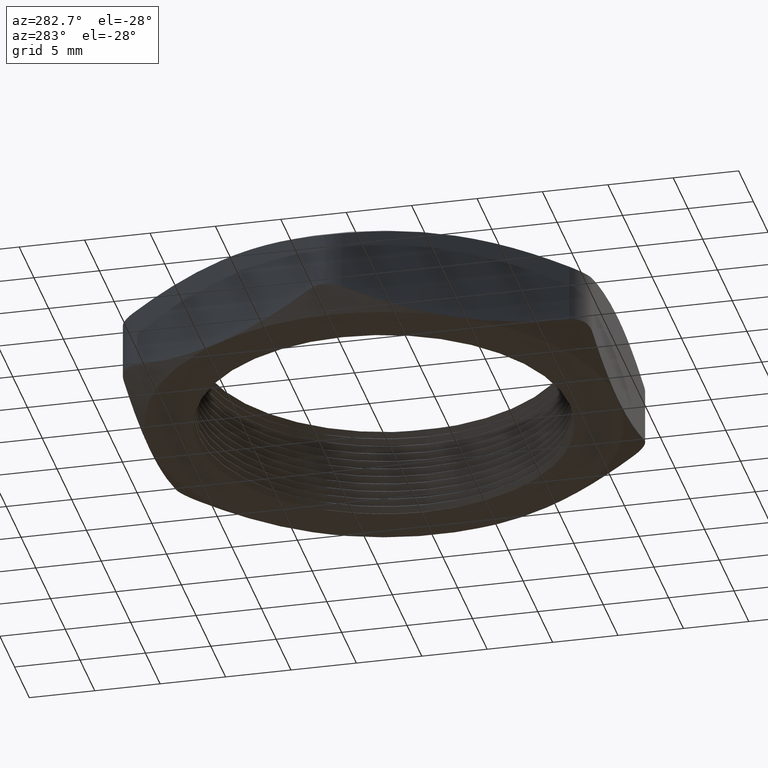
[diagram: clean part render]
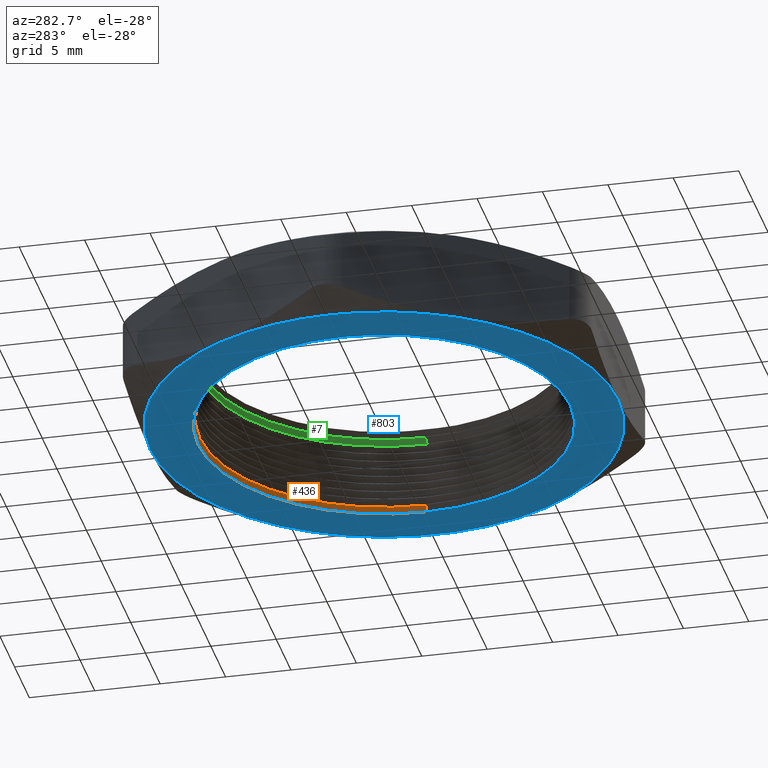
[diagram: same view with three faces highlighted in distinct colors, each labeled with its STEP entity id]
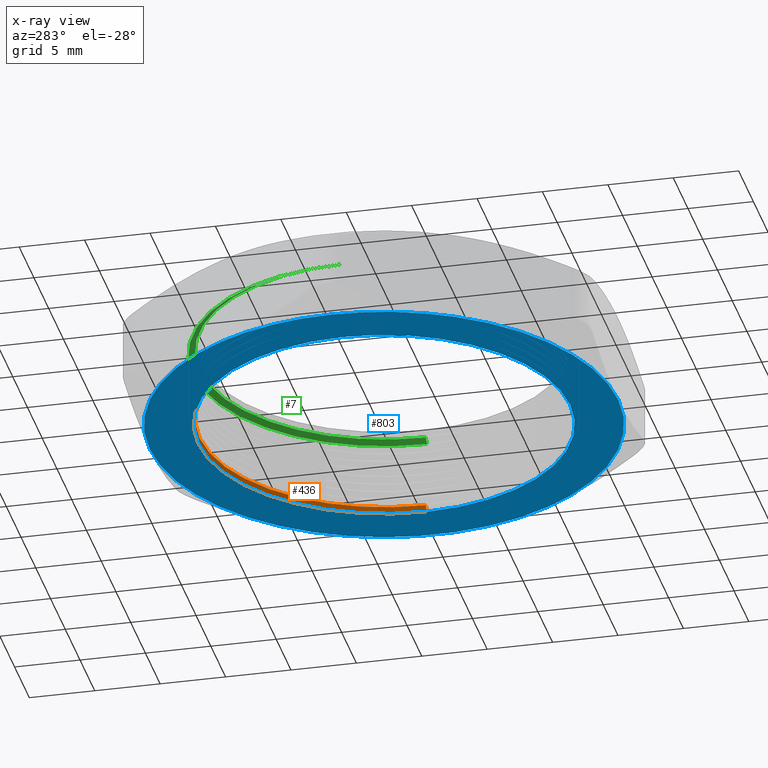
[diagram: x-ray of the same camera — body ghosted, the three highlighted faces saturated]
A machine part, auxiliary view with three faces highlighted in distinct colors.
The next image is the same camera in x-ray (body ghosted, the three faces saturated) — at least one of them is partly hidden behind the body in this view.
Their STEP definitions:

[orange] entity #436 — the highlighted conical surface has half-angle 60 deg.
#421 = ORIENTED_EDGE ( 'NONE', *, *, #768, .F. ) ;
#422 = ORIENTED_EDGE ( 'NONE', *, *, #686, .T. ) ;
#423 = ORIENTED_EDGE ( 'NONE', *, *, #846, .T. ) ;
#424 = ORIENTED_EDGE ( 'NONE', *, *, #435, .F. ) ;
#435 = EDGE_CURVE ( 'NONE', #769, #844, #1691, .T. ) ;
#436 = ADVANCED_FACE ( 'NONE', ( #1692 ), #1748, .F. ) ;
#437 = EDGE_LOOP ( 'NONE', ( #421, #422, #423, #424 ) ) ;
#686 = EDGE_CURVE ( 'NONE', #787, #788, #2237, .T. ) ;
#768 = EDGE_CURVE ( 'NONE', #787, #769, #2354, .T. ) ;
#769 = VERTEX_POINT ( 'NONE', #2350 ) ;
#787 = VERTEX_POINT ( 'NONE', #2370 ) ;
#788 = VERTEX_POINT ( 'NONE', #2369 ) ;
#844 = VERTEX_POINT ( 'NONE', #2506 ) ;
#846 = EDGE_CURVE ( 'NONE', #788, #844, #2505, .T. ) ;
#1686 = CARTESIAN_POINT ( 'NONE',  ( 0.0000000000000000000, 0.0000000000000000000, 0.008452994616207746400 ) ) ;
#1687 = DIRECTION ( 'NONE',  ( 1.000000000000000000, 0.0000000000000000000, 0.0000000000000000000 ) ) ;
#1688 = DIRECTION ( 'NONE',  ( 0.0000000000000000000, 0.0000000000000000000, 1.000000000000000000 ) ) ;
#1689 = CARTESIAN_POINT ( 'NONE',  ( 0.0000000000000000000, 0.0000000000000000000, 0.008452994616207746400 ) ) ;
#1690 = AXIS2_PLACEMENT_3D ( 'NONE', #1689, #1688, #1687 ) ;
#1691 = CIRCLE ( 'NONE', #1690, 0.5750000000000000700 ) ;
#1692 = FACE_OUTER_BOUND ( 'NONE', #437, .T. ) ;
#1745 = DIRECTION ( 'NONE',  ( -1.000000000000000000, 0.0000000000000000000, 0.0000000000000000000 ) ) ;
#1746 = DIRECTION ( 'NONE',  ( 0.0000000000000000000, 0.0000000000000000000, -1.000000000000000000 ) ) ;
#1747 = AXIS2_PLACEMENT_3D ( 'NONE', #1686, #1746, #1745 ) ;
#1748 = CONICAL_SURFACE ( 'NONE', #1747, 0.5750000000000000700, 1.047197551196607600 ) ;
#2233 = DIRECTION ( 'NONE',  ( 1.000000000000000000, 0.0000000000000000000, 0.0000000000000000000 ) ) ;
#2234 = DIRECTION ( 'NONE',  ( 0.0000000000000000000, 0.0000000000000000000, 1.000000000000000000 ) ) ;
#2235 = CARTESIAN_POINT ( 'NONE',  ( 0.0000000000000000000, 0.0000000000000000000, 0.01999999999999999000 ) ) ;
#2236 = AXIS2_PLACEMENT_3D ( 'NONE', #2235, #2234, #2233 ) ;
#2237 = CIRCLE ( 'NONE', #2236, 0.5550000000000000500 ) ;
#2350 = CARTESIAN_POINT ( 'NONE',  ( 0.5750000000000000700, 0.0000000000000000000, 0.008452994616207746400 ) ) ;
#2351 = DIRECTION ( 'NONE',  ( 0.8660254037844434800, 1.060575238724912700E-016, -0.4999999999999913400 ) ) ;
#2352 = VECTOR ( 'NONE', #2351, 39.37007874015748900 ) ;
#2353 = CARTESIAN_POINT ( 'NONE',  ( 0.5750000000000000700, 7.041719095097281400E-017, 0.008452994616207746400 ) ) ;
#2354 = LINE ( 'NONE', #2353, #2352 ) ;
#2369 = CARTESIAN_POINT ( 'NONE',  ( -0.5550000000000000500, 0.0000000000000000000, 0.01999999999999999000 ) ) ;
#2370 = CARTESIAN_POINT ( 'NONE',  ( 0.5550000000000000500, 6.796789735267810000E-017, 0.01999999999999999000 ) ) ;
#2502 = DIRECTION ( 'NONE',  ( -0.8660254037844434800, 0.0000000000000000000, -0.4999999999999913400 ) ) ;
#2503 = VECTOR ( 'NONE', #2502, 39.37007874015748900 ) ;
#2504 = CARTESIAN_POINT ( 'NONE',  ( -0.5750000000000000700, 0.0000000000000000000, 0.008452994616207746400 ) ) ;
#2505 = LINE ( 'NONE', #2504, #2503 ) ;
#2506 = CARTESIAN_POINT ( 'NONE',  ( -0.5750000000000000700, 7.041719095097281400E-017, 0.008452994616207746400 ) ) ;

[blue] entity #803 — the highlighted planar face has unit normal (0, 0, 1).
#581 = EDGE_CURVE ( 'NONE', #582, #583, #1980, .T. ) ;
#582 = VERTEX_POINT ( 'NONE', #1976 ) ;
#583 = VERTEX_POINT ( 'NONE', #1975 ) ;
#688 = EDGE_LOOP ( 'NONE', ( #724, #689, #747, #804, #743, #760, #761 ) ) ;
#689 = ORIENTED_EDGE ( 'NONE', *, *, #737, .F. ) ;
#724 = ORIENTED_EDGE ( 'NONE', *, *, #802, .F. ) ;
#734 = VERTEX_POINT ( 'NONE', #2289 ) ;
#735 = VERTEX_POINT ( 'NONE', #2288 ) ;
#737 = EDGE_CURVE ( 'NONE', #759, #734, #2282, .T. ) ;
#740 = EDGE_CURVE ( 'NONE', #582, #735, #2275, .T. ) ;
#741 = EDGE_LOOP ( 'NONE', ( #750, #751 ) ) ;
#742 = VERTEX_POINT ( 'NONE', #2328 ) ;
#743 = ORIENTED_EDGE ( 'NONE', *, *, #744, .F. ) ;
#744 = EDGE_CURVE ( 'NONE', #583, #742, #2327, .T. ) ;
#747 = ORIENTED_EDGE ( 'NONE', *, *, #748, .F. ) ;
#748 = EDGE_CURVE ( 'NONE', #749, #759, #2322, .T. ) ;
#749 = VERTEX_POINT ( 'NONE', #2317 ) ;
#750 = ORIENTED_EDGE ( 'NONE', *, *, #819, .F. ) ;
#751 = ORIENTED_EDGE ( 'NONE', *, *, #752, .F. ) ;
#752 = EDGE_CURVE ( 'NONE', #821, #820, #2316, .T. ) ;
#759 = VERTEX_POINT ( 'NONE', #2359 ) ;
#760 = ORIENTED_EDGE ( 'NONE', *, *, #581, .F. ) ;
#761 = ORIENTED_EDGE ( 'NONE', *, *, #740, .T. ) ;
#802 = EDGE_CURVE ( 'NONE', #734, #735, #2405, .T. ) ;
#803 = ADVANCED_FACE ( 'NONE', ( #2406, #2400 ), #2399, .F. ) ;
#804 = ORIENTED_EDGE ( 'NONE', *, *, #805, .F. ) ;
#805 = EDGE_CURVE ( 'NONE', #742, #749, #2456, .T. ) ;
#819 = EDGE_CURVE ( 'NONE', #820, #821, #2435, .T. ) ;
#820 = VERTEX_POINT ( 'NONE', #2430 ) ;
#821 = VERTEX_POINT ( 'NONE', #2429 ) ;
#1975 = CARTESIAN_POINT ( 'NONE',  ( -0.7049999999999998500, 0.0000000000000000000, 0.0000000000000000000 ) ) ;
#1976 = CARTESIAN_POINT ( 'NONE',  ( -0.6105479096680291900, 0.3525000000000000900, 0.0000000000000000000 ) ) ;
#1977 = DIRECTION ( 'NONE',  ( 1.000000000000000000, 0.0000000000000000000, 0.0000000000000000000 ) ) ;
#1978 = DIRECTION ( 'NONE',  ( 0.0000000000000000000, 0.0000000000000000000, 1.000000000000000000 ) ) ;
#1979 = AXIS2_PLACEMENT_3D ( 'NONE', #1985, #1978, #1977 ) ;
#1980 = CIRCLE ( 'NONE', #1979, 0.7049999999999998500 ) ;
#1985 = CARTESIAN_POINT ( 'NONE',  ( 0.0000000000000000000, 0.0000000000000000000, 0.0000000000000000000 ) ) ;
#2275 = CIRCLE ( 'NONE', #2332, 0.7049999999999999600 ) ;
#2278 = DIRECTION ( 'NONE',  ( 1.000000000000000000, 0.0000000000000000000, 0.0000000000000000000 ) ) ;
#2279 = DIRECTION ( 'NONE',  ( 0.0000000000000000000, 0.0000000000000000000, 1.000000000000000000 ) ) ;
#2280 = CARTESIAN_POINT ( 'NONE',  ( 0.0000000000000000000, 0.0000000000000000000, 0.0000000000000000000 ) ) ;
#2281 = AXIS2_PLACEMENT_3D ( 'NONE', #2280, #2279, #2278 ) ;
#2282 = CIRCLE ( 'NONE', #2281, 0.7049999999999998500 ) ;
#2288 = CARTESIAN_POINT ( 'NONE',  ( 0.0000000000000000000, 0.7049999999999999600, 0.0000000000000000000 ) ) ;
#2289 = CARTESIAN_POINT ( 'NONE',  ( 0.6105479096680294100, 0.3524999999999999200, 0.0000000000000000000 ) ) ;
#2312 = DIRECTION ( 'NONE',  ( 1.000000000000000000, 0.0000000000000000000, 0.0000000000000000000 ) ) ;
#2313 = DIRECTION ( 'NONE',  ( 0.0000000000000000000, 0.0000000000000000000, -1.000000000000000000 ) ) ;
#2314 = CARTESIAN_POINT ( 'NONE',  ( 0.0000000000000000000, 0.0000000000000000000, 0.0000000000000000000 ) ) ;
#2315 = AXIS2_PLACEMENT_3D ( 'NONE', #2314, #2313, #2312 ) ;
#2316 = CIRCLE ( 'NONE', #2315, 0.5603589838486221500 ) ;
#2317 = CARTESIAN_POINT ( 'NONE',  ( 0.0000000000000000000, -0.7049999999999999600, 0.0000000000000000000 ) ) ;
#2318 = DIRECTION ( 'NONE',  ( 1.000000000000000000, 0.0000000000000000000, 0.0000000000000000000 ) ) ;
#2319 = DIRECTION ( 'NONE',  ( 0.0000000000000000000, 0.0000000000000000000, 1.000000000000000000 ) ) ;
#2320 = CARTESIAN_POINT ( 'NONE',  ( 0.0000000000000000000, 0.0000000000000000000, 0.0000000000000000000 ) ) ;
#2321 = AXIS2_PLACEMENT_3D ( 'NONE', #2320, #2319, #2318 ) ;
#2322 = CIRCLE ( 'NONE', #2321, 0.7049999999999998500 ) ;
#2323 = DIRECTION ( 'NONE',  ( 1.000000000000000000, 0.0000000000000000000, 0.0000000000000000000 ) ) ;
#2324 = DIRECTION ( 'NONE',  ( 0.0000000000000000000, 0.0000000000000000000, 1.000000000000000000 ) ) ;
#2325 = CARTESIAN_POINT ( 'NONE',  ( 0.0000000000000000000, 0.0000000000000000000, 0.0000000000000000000 ) ) ;
#2326 = AXIS2_PLACEMENT_3D ( 'NONE', #2325, #2324, #2323 ) ;
#2327 = CIRCLE ( 'NONE', #2326, 0.7049999999999998500 ) ;
#2328 = CARTESIAN_POINT ( 'NONE',  ( -0.6105479096680294100, -0.3524999999999998700, 0.0000000000000000000 ) ) ;
#2329 = DIRECTION ( 'NONE',  ( -1.000000000000000000, 0.0000000000000000000, 0.0000000000000000000 ) ) ;
#2330 = DIRECTION ( 'NONE',  ( 0.0000000000000000000, 0.0000000000000000000, -1.000000000000000000 ) ) ;
#2331 = CARTESIAN_POINT ( 'NONE',  ( 0.0000000000000000000, 0.0000000000000000000, 0.0000000000000000000 ) ) ;
#2332 = AXIS2_PLACEMENT_3D ( 'NONE', #2331, #2330, #2329 ) ;
#2359 = CARTESIAN_POINT ( 'NONE',  ( 0.6105479096680293000, -0.3524999999999999200, 0.0000000000000000000 ) ) ;
#2398 = AXIS2_PLACEMENT_3D ( 'NONE', #2459, #2458, #2457 ) ;
#2399 = PLANE ( 'NONE',  #2398 ) ;
#2400 = FACE_BOUND ( 'NONE', #741, .T. ) ;
#2401 = DIRECTION ( 'NONE',  ( 1.000000000000000000, 0.0000000000000000000, 0.0000000000000000000 ) ) ;
#2402 = DIRECTION ( 'NONE',  ( 0.0000000000000000000, 0.0000000000000000000, 1.000000000000000000 ) ) ;
#2403 = CARTESIAN_POINT ( 'NONE',  ( 0.0000000000000000000, 0.0000000000000000000, 0.0000000000000000000 ) ) ;
#2404 = AXIS2_PLACEMENT_3D ( 'NONE', #2403, #2402, #2401 ) ;
#2405 = CIRCLE ( 'NONE', #2404, 0.7049999999999998500 ) ;
#2406 = FACE_OUTER_BOUND ( 'NONE', #688, .T. ) ;
#2429 = CARTESIAN_POINT ( 'NONE',  ( -0.5603589838486221500, 6.952068727267033500E-017, 0.0000000000000000000 ) ) ;
#2430 = CARTESIAN_POINT ( 'NONE',  ( 0.5603589838486221500, 0.0000000000000000000, 0.0000000000000000000 ) ) ;
#2431 = DIRECTION ( 'NONE',  ( 1.000000000000000000, 0.0000000000000000000, 0.0000000000000000000 ) ) ;
#2432 = DIRECTION ( 'NONE',  ( 0.0000000000000000000, 0.0000000000000000000, -1.000000000000000000 ) ) ;
#2433 = CARTESIAN_POINT ( 'NONE',  ( 0.0000000000000000000, 0.0000000000000000000, 0.0000000000000000000 ) ) ;
#2434 = AXIS2_PLACEMENT_3D ( 'NONE', #2433, #2432, #2431 ) ;
#2435 = CIRCLE ( 'NONE', #2434, 0.5603589838486221500 ) ;
#2452 = DIRECTION ( 'NONE',  ( 1.000000000000000000, 0.0000000000000000000, 0.0000000000000000000 ) ) ;
#2453 = DIRECTION ( 'NONE',  ( 0.0000000000000000000, 0.0000000000000000000, 1.000000000000000000 ) ) ;
#2454 = CARTESIAN_POINT ( 'NONE',  ( 0.0000000000000000000, 0.0000000000000000000, 0.0000000000000000000 ) ) ;
#2455 = AXIS2_PLACEMENT_3D ( 'NONE', #2454, #2453, #2452 ) ;
#2456 = CIRCLE ( 'NONE', #2455, 0.7049999999999998500 ) ;
#2457 = DIRECTION ( 'NONE',  ( 1.000000000000000000, 0.0000000000000000000, 0.0000000000000000000 ) ) ;
#2458 = DIRECTION ( 'NONE',  ( 0.0000000000000000000, 0.0000000000000000000, 1.000000000000000000 ) ) ;
#2459 = CARTESIAN_POINT ( 'NONE',  ( -0.8140638795573724700, -1.022001824137960300E-016, 0.0000000000000000000 ) ) ;

[green] entity #7 — the highlighted conical surface has half-angle 60 deg.
#1 = ORIENTED_EDGE ( 'NONE', *, *, #58, .T. ) ;
#2 = ORIENTED_EDGE ( 'NONE', *, *, #642, .T. ) ;
#4 = EDGE_LOOP ( 'NONE', ( #5, #1, #2, #2618 ) ) ;
#5 = ORIENTED_EDGE ( 'NONE', *, *, #573, .F. ) ;
#7 = ADVANCED_FACE ( 'NONE', ( #859 ), #854, .F. ) ;
#58 = EDGE_CURVE ( 'NONE', #571, #570, #949, .T. ) ;
#570 = VERTEX_POINT ( 'NONE', #1997 ) ;
#571 = VERTEX_POINT ( 'NONE', #1996 ) ;
#573 = EDGE_CURVE ( 'NONE', #571, #598, #1995, .T. ) ;
#587 = VERTEX_POINT ( 'NONE', #1970 ) ;
#598 = VERTEX_POINT ( 'NONE', #2013 ) ;
#642 = EDGE_CURVE ( 'NONE', #570, #587, #2146, .T. ) ;
#849 = DIRECTION ( 'NONE',  ( -1.000000000000000000, 0.0000000000000000000, 0.0000000000000000000 ) ) ;
#850 = DIRECTION ( 'NONE',  ( 0.0000000000000000000, 0.0000000000000000000, -1.000000000000000000 ) ) ;
#851 = CARTESIAN_POINT ( 'NONE',  ( 0.0000000000000000000, 0.0000000000000000000, 0.2334529946162077800 ) ) ;
#852 = AXIS2_PLACEMENT_3D ( 'NONE', #851, #850, #849 ) ;
#854 = CONICAL_SURFACE ( 'NONE', #852, 0.5750000000000000700, 1.047197551196607600 ) ;
#859 = FACE_OUTER_BOUND ( 'NONE', #4, .T. ) ;
#945 = DIRECTION ( 'NONE',  ( 1.000000000000000000, 0.0000000000000000000, 0.0000000000000000000 ) ) ;
#946 = DIRECTION ( 'NONE',  ( 0.0000000000000000000, 0.0000000000000000000, 1.000000000000000000 ) ) ;
#947 = CARTESIAN_POINT ( 'NONE',  ( 0.0000000000000000000, 0.0000000000000000000, 0.2450000000000000200 ) ) ;
#948 = AXIS2_PLACEMENT_3D ( 'NONE', #947, #946, #945 ) ;
#949 = CIRCLE ( 'NONE', #948, 0.5550000000000000500 ) ;
#1970 = CARTESIAN_POINT ( 'NONE',  ( -0.5750000000000000700, 0.0000000000000000000, 0.2334529946162077800 ) ) ;
#1992 = DIRECTION ( 'NONE',  ( 0.8660254037844434800, 1.060575238724912700E-016, -0.4999999999999913400 ) ) ;
#1993 = VECTOR ( 'NONE', #1992, 39.37007874015748900 ) ;
#1994 = CARTESIAN_POINT ( 'NONE',  ( 0.5750000000000000700, 7.041719095097281400E-017, 0.2334529946162077800 ) ) ;
#1995 = LINE ( 'NONE', #1994, #1993 ) ;
#1996 = CARTESIAN_POINT ( 'NONE',  ( 0.5550000000000000500, 6.796789735267810000E-017, 0.2450000000000000200 ) ) ;
#1997 = CARTESIAN_POINT ( 'NONE',  ( -0.5550000000000000500, 0.0000000000000000000, 0.2450000000000000200 ) ) ;
#2013 = CARTESIAN_POINT ( 'NONE',  ( 0.5750000000000000700, 7.041719095097281400E-017, 0.2334529946162077800 ) ) ;
#2143 = DIRECTION ( 'NONE',  ( -0.8660254037844434800, 0.0000000000000000000, -0.4999999999999913400 ) ) ;
#2144 = VECTOR ( 'NONE', #2143, 39.37007874015748900 ) ;
#2145 = CARTESIAN_POINT ( 'NONE',  ( -0.5750000000000000700, 0.0000000000000000000, 0.2334529946162077800 ) ) ;
#2146 = LINE ( 'NONE', #2145, #2144 ) ;
#2575 = DIRECTION ( 'NONE',  ( 1.000000000000000000, 0.0000000000000000000, 0.0000000000000000000 ) ) ;
#2576 = DIRECTION ( 'NONE',  ( 0.0000000000000000000, 0.0000000000000000000, 1.000000000000000000 ) ) ;
#2577 = AXIS2_PLACEMENT_3D ( 'NONE', #2583, #2576, #2575 ) ;
#2578 = CIRCLE ( 'NONE', #2577, 0.5750000000000000700 ) ;
#2583 = CARTESIAN_POINT ( 'NONE',  ( 0.0000000000000000000, 0.0000000000000000000, 0.2334529946162077800 ) ) ;
#2618 = ORIENTED_EDGE ( 'NONE', *, *, #2619, .F. ) ;
#2619 = EDGE_CURVE ( 'NONE', #598, #587, #2578, .T. ) ;